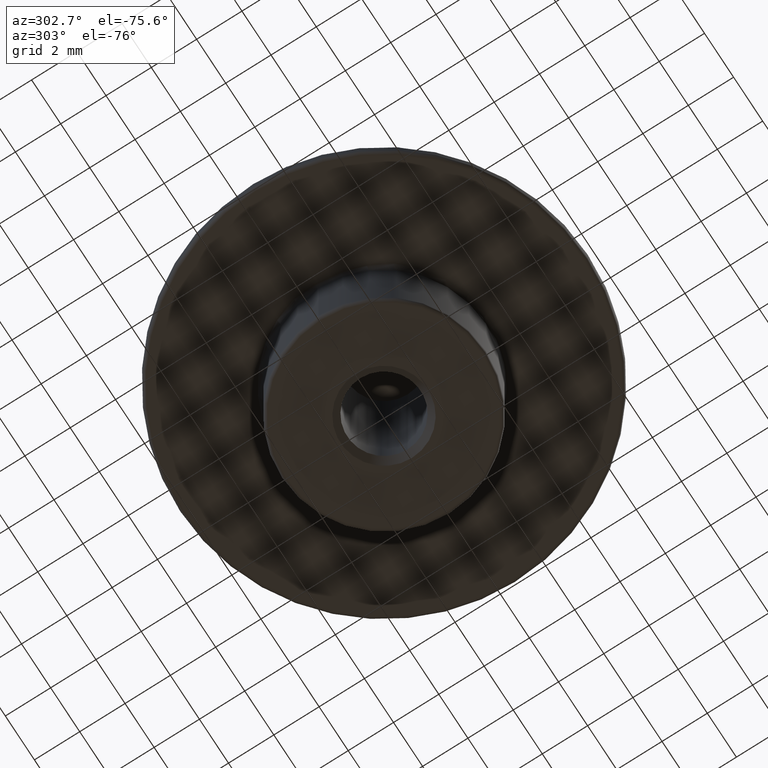
[diagram: clean part render]
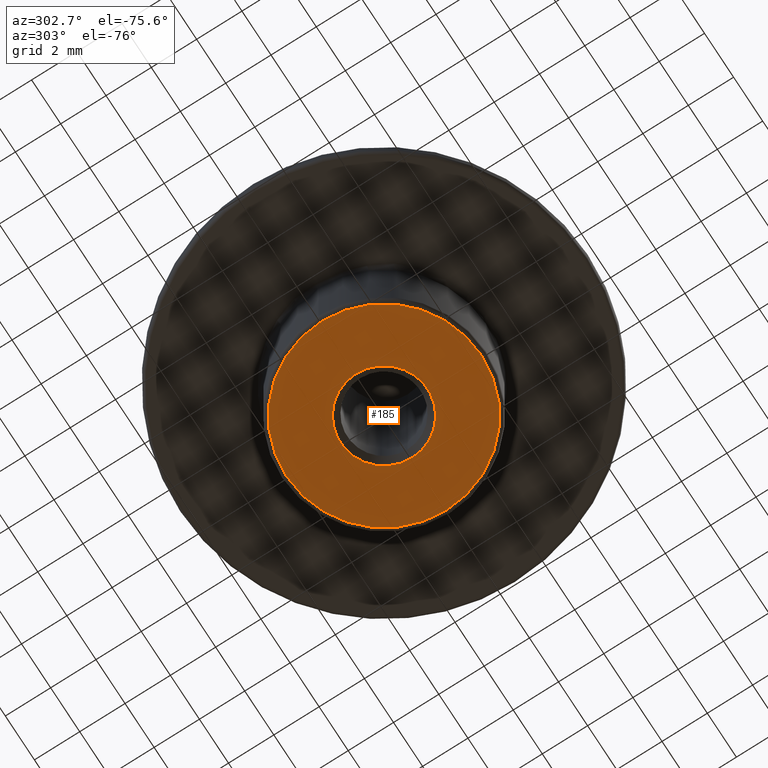
[diagram: same view with one face highlighted and labeled with its STEP entity id]
A machine part, auxiliary view. The second image highlights one B-rep face of the part: STEP entity #185.
In plain terms, the highlighted planar face has unit normal (0, 0, 1).
Its self-contained STEP definition (entity closure, byte-faithful):
#18=FACE_BOUND('',#51,.T.);
#20=PLANE('',#227);
#37=FACE_OUTER_BOUND('',#50,.T.);
#50=EDGE_LOOP('',(#143,#144));
#51=EDGE_LOOP('',(#145));
#66=CIRCLE('',#224,4.3);
#68=CIRCLE('',#226,4.3);
#69=CIRCLE('',#228,1.921);
#87=VERTEX_POINT('',#340);
#88=VERTEX_POINT('',#341);
#89=VERTEX_POINT('',#346);
#107=EDGE_CURVE('',#87,#88,#66,.T.);
#109=EDGE_CURVE('',#88,#87,#68,.T.);
#110=EDGE_CURVE('',#89,#89,#69,.T.);
#143=ORIENTED_EDGE('',*,*,#107,.F.);
#144=ORIENTED_EDGE('',*,*,#109,.F.);
#145=ORIENTED_EDGE('',*,*,#110,.F.);
#185=ADVANCED_FACE('',(#37,#18),#20,.F.);
#224=AXIS2_PLACEMENT_3D('',#342,#272,#273);
#226=AXIS2_PLACEMENT_3D('',#344,#276,#277);
#227=AXIS2_PLACEMENT_3D('',#345,#278,#279);
#228=AXIS2_PLACEMENT_3D('',#347,#280,#281);
#272=DIRECTION('center_axis',(0.,0.,1.));
#273=DIRECTION('ref_axis',(1.,0.,0.));
#276=DIRECTION('center_axis',(0.,0.,1.));
#277=DIRECTION('ref_axis',(1.,0.,0.));
#278=DIRECTION('center_axis',(0.,0.,1.));
#279=DIRECTION('ref_axis',(1.,0.,0.));
#280=DIRECTION('center_axis',(0.,0.,-1.));
#281=DIRECTION('ref_axis',(1.,0.,0.));
#340=CARTESIAN_POINT('',(-4.3,-5.26598123633362E-16,2.));
#341=CARTESIAN_POINT('',(4.3,-5.26598123633362E-16,2.));
#342=CARTESIAN_POINT('Origin',(0.,0.,2.));
#344=CARTESIAN_POINT('Origin',(0.,0.,2.));
#345=CARTESIAN_POINT('Origin',(2.51521111380092E-16,1.02798428206033E-16,
2.));
#346=CARTESIAN_POINT('',(-1.921,2.35254650116207E-16,2.));
#347=CARTESIAN_POINT('Origin',(0.,0.,2.));